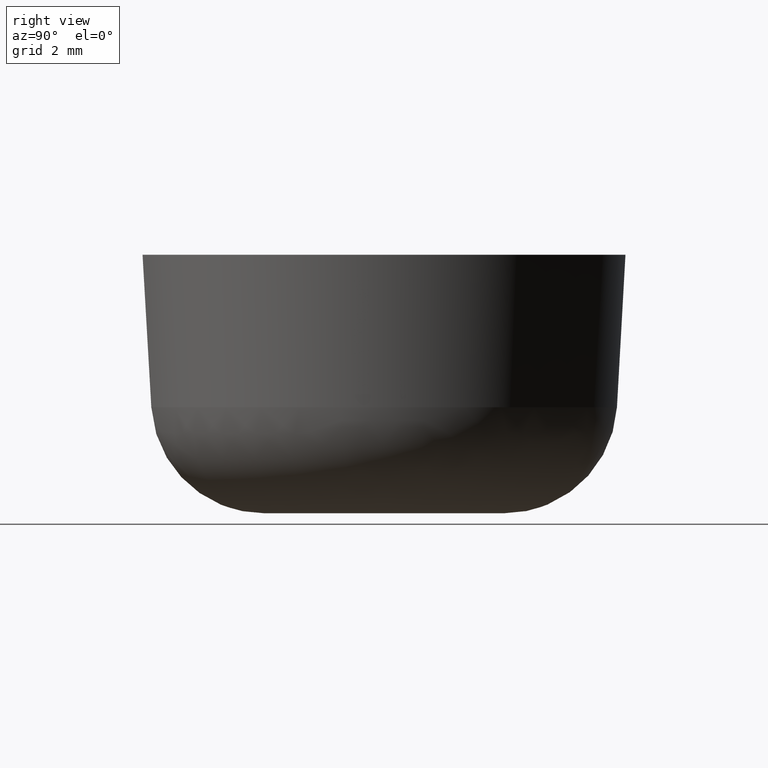
[diagram: clean part render]
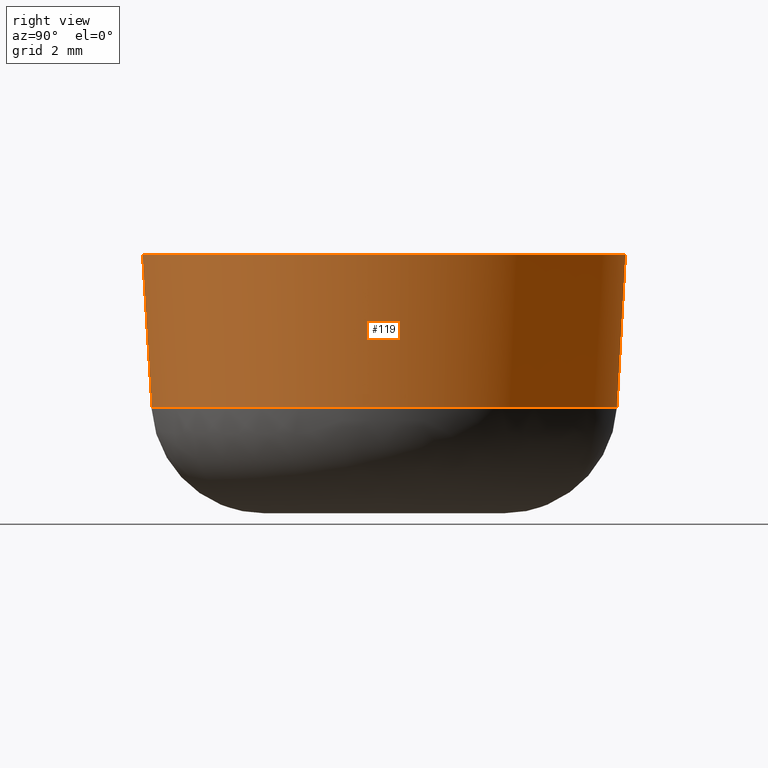
[diagram: same view with one face highlighted and labeled with its STEP entity id]
A machine part, right view. The second image highlights one B-rep face of the part: STEP entity #119.
In plain terms, the highlighted face is a freeform B-spline surface patch.
Its self-contained STEP definition (entity closure, byte-faithful):
#119=ADVANCED_FACE('',(#208),#207,.T.);
#207=( BOUNDED_SURFACE() B_SPLINE_SURFACE( 2,1,((#411,#412),(#413,#414),(#415,#416),(#417,#418),(#419,#420),(#421,#422),(#423,#424)), .UNSPECIFIED.,.T.,.F.,.F.) B_SPLINE_SURFACE_WITH_KNOTS((3,2,2,3),(2,2),(0.00000000000E+000,3.33333333333E-001,6.66666666667E-001,1.00000000000E+000),(0.00000000000E+000,1.00000000000E+000), .UNSPECIFIED. ) GEOMETRIC_REPRESENTATION_ITEM() RATIONAL_B_SPLINE_SURFACE(((1.00000000000E+000,1.00000000000E+000),(5.00000000000E-001,5.00000000000E-001),(1.00000000000E+000,1.00000000000E+000),(5.00000000000E-001,5.00000000000E-001),(1.00000000000E+000,1.00000000000E+000),(5.00000000000E-001,5.00000000000E-001),(1.00000000000E+000,1.00000000000E+000))) REPRESENTATION_ITEM('') SURFACE() );
#208=FACE_OUTER_BOUND('',#425,.T.);
#411=CARTESIAN_POINT('',(-3.76465701838E+000,-6.14336190690E+000,3.28167591578E+000));
#412=CARTESIAN_POINT('',(-3.91873923537E+000,-6.39480123266E+000,8.00000000000E+000));
#413=CARTESIAN_POINT('',(6.87595793366E+000,-1.26639391358E+001,3.28167591578E+000));
#414=CARTESIAN_POINT('',(7.15738140389E+000,-1.31822566899E+001,8.00000000000E+000));
#415=CARTESIAN_POINT('',(7.20263598521E+000,-1.88607661000E-001,3.28167591578E+000));
#416=CARTESIAN_POINT('',(7.49742993732E+000,-1.96327112309E-001,8.00000000000E+000));
#417=CARTESIAN_POINT('',(7.52931403675E+000,1.22867238138E+001,3.28167591578E+000));
#418=CARTESIAN_POINT('',(7.83747847074E+000,1.27896024653E+001,8.00000000000E+000));
#419=CARTESIAN_POINT('',(-3.43797896683E+000,6.33196956790E+000,3.28167591578E+000));
#420=CARTESIAN_POINT('',(-3.57869070195E+000,6.59112834496E+000,8.00000000000E+000));
#421=CARTESIAN_POINT('',(-1.44052719704E+001,3.77215322000E-001,3.28167591578E+000));
#422=CARTESIAN_POINT('',(-1.49948598746E+001,3.92654224618E-001,8.00000000000E+000));
#423=CARTESIAN_POINT('',(-3.76465701838E+000,-6.14336190690E+000,3.28167591578E+000));
#424=CARTESIAN_POINT('',(-3.91873923537E+000,-6.39480123266E+000,8.00000000000E+000));
#425=EDGE_LOOP('',(#585,#586,#587,#588,#589,#590,#591,#592,#593,#594,#595));
#585=ORIENTED_EDGE('',*,*,#703,.F.);
#586=ORIENTED_EDGE('',*,*,#702,.T.);
#587=ORIENTED_EDGE('',*,*,#704,.T.);
#588=ORIENTED_EDGE('',*,*,#705,.T.);
#589=ORIENTED_EDGE('',*,*,#706,.T.);
#590=ORIENTED_EDGE('',*,*,#700,.F.);
#591=ORIENTED_EDGE('',*,*,#707,.F.);
#592=ORIENTED_EDGE('',*,*,#708,.F.);
#593=ORIENTED_EDGE('',*,*,#709,.F.);
#594=ORIENTED_EDGE('',*,*,#710,.F.);
#595=ORIENTED_EDGE('',*,*,#711,.F.);
#700=EDGE_CURVE('',#865,#872,#873,.T.);
#702=EDGE_CURVE('',#858,#879,#886,.T.);
#703=EDGE_CURVE('',#858,#892,#893,.T.);
#704=EDGE_CURVE('',#879,#899,#900,.T.);
#705=EDGE_CURVE('',#899,#906,#907,.T.);
#706=EDGE_CURVE('',#906,#872,#913,.T.);
#707=EDGE_CURVE('',#919,#865,#920,.T.);
#708=EDGE_CURVE('',#926,#919,#927,.T.);
#709=EDGE_CURVE('',#933,#926,#934,.T.);
#710=EDGE_CURVE('',#940,#933,#941,.T.);
#711=EDGE_CURVE('',#892,#940,#947,.T.);
#858=VERTEX_POINT('',#1271);
#865=VERTEX_POINT('',#1276);
#872=VERTEX_POINT('',#1281);
#873=LINE('',#1282,#1283);
#879=VERTEX_POINT('',#1285);
#886=LINE('',#1291,#1292);
#892=VERTEX_POINT('',#1294);
#893=CIRCLE('',#1298,7.20510572004E+000);
#899=VERTEX_POINT('',#1299);
#900=CIRCLE('',#1303,7.49999927790E+000);
#906=VERTEX_POINT('',#1304);
#907=CIRCLE('',#1308,7.50000000000E+000);
#913=CIRCLE('',#1312,7.49999994097E+000);
#919=VERTEX_POINT('',#1313);
#920=CIRCLE('',#1317,7.20510500000E+000);
#926=VERTEX_POINT('',#1318);
#927=CIRCLE('',#1322,7.20510501746E+000);
#933=VERTEX_POINT('',#1323);
#934=CIRCLE('',#1327,7.20510503330E+000);
#940=VERTEX_POINT('',#1328);
#941=CIRCLE('',#1332,7.20510503330E+000);
#947=CIRCLE('',#1336,7.20511477654E+000);
#1271=CARTESIAN_POINT('',(-6.69977089044E+000,-2.65077498117E+000,3.28167591578E+000));
#1276=CARTESIAN_POINT('',(5.65312500498E-001,-7.18289355606E+000,3.28167599999E+000));
#1281=CARTESIAN_POINT('',(5.88438914321E-001,-7.47688029604E+000,7.99999927176E+000));
#1282=CARTESIAN_POINT('',(5.65312500498E-001,-7.18289355606E+000,3.28167599999E+000));
#1283=VECTOR('',#1284,4.72752974937E+000);
#1284=DIRECTION('',(4.89186003024E-003,-6.21861216248E-002,9.98052581772E-001));
#1285=CARTESIAN_POINT('',(-6.97398407699E+000,-2.75926536369E+000,7.99999920353E+000));
#1291=CARTESIAN_POINT('',(-6.69977089044E+000,-2.65077498117E+000,3.28167591578E+000));
#1292=VECTOR('',#1293,4.72752976537E+000);
#1293=DIRECTION('',(-5.80034817669E-002,-2.29486408122E-002,9.98052581775E-001));
#1294=CARTESIAN_POINT('',(-7.20510500000E+000,0.00000000000E+000,3.28167600000E+000));
#1295=CARTESIAN_POINT('',(7.20043191293E-007,1.51573551710E-007,3.28167479922E+000));
#1296=DIRECTION('',(-1.66657472056E-007,-1.09371893837E-015,-1.00000000000E+000));
#1297=DIRECTION('',(9.29864442078E-001,3.67902323122E-001,-1.54968857674E-007));
#1298=AXIS2_PLACEMENT_3D('',#1295,#1296,#1297);
#1299=CARTESIAN_POINT('',(-7.50000000000E+000,0.00000000000E+000,8.00000000000E+000));
#1300=CARTESIAN_POINT('',(-7.22109271045E-007,-2.34921149200E-009,7.99998864378E+000));
#1301=DIRECTION('',(-1.51416237786E-006,-4.94854753115E-016,-9.99999999999E-001));
#1302=DIRECTION('',(9.29864536844E-001,3.67902083600E-001,-1.40796589838E-006));
#1303=AXIS2_PLACEMENT_3D('',#1300,#1301,#1302);
#1304=CARTESIAN_POINT('',(7.50000000000E+000,0.00000000000E+000,8.00000000000E+000));
#1305=CARTESIAN_POINT('',(0.00000000000E+000,0.00000000000E+000,8.00000000000E+000));
#1306=DIRECTION('',(0.00000000000E+000,0.00000000000E+000,-1.00000000000E+000));
#1307=DIRECTION('',(1.00000000000E+000,-0.00000000000E+000,-0.00000000000E+000));
#1308=AXIS2_PLACEMENT_3D('',#1305,#1306,#1307);
#1309=CARTESIAN_POINT('',(5.90268411926E-008,-8.90675488918E-009,7.99999920976E+000));
#1310=DIRECTION('',(1.05365811365E-007,8.82315015805E-024,-1.00000000000E+000));
#1311=DIRECTION('',(-1.00000000000E+000,-1.18756732790E-009,-1.05365811365E-007));
#1312=AXIS2_PLACEMENT_3D('',#1309,#1310,#1311);
#1313=CARTESIAN_POINT('',(7.20510500000E+000,0.00000000000E+000,3.28167600000E+000));
#1314=CARTESIAN_POINT('',(4.31521485211E-012,-6.56807941368E-013,3.28167599999E+000));
#1315=DIRECTION('',(9.31310225297E-013,2.43534520832E-028,-1.00000000000E+000));
#1316=DIRECTION('',(-1.00000000000E+000,-9.11586911459E-014,-9.31310225297E-013));
#1317=AXIS2_PLACEMENT_3D('',#1314,#1315,#1316);
#1318=CARTESIAN_POINT('',(1.19047542912E+000,7.10607532268E+000,3.28167599922E+000));
#1319=CARTESIAN_POINT('',(-1.74594365632E-008,-2.26142216064E-009,3.28167599906E+000));
#1320=DIRECTION('',(1.30200695588E-010,2.38919400887E-017,-1.00000000000E+000));
#1321=DIRECTION('',(-1.65226661332E-001,-9.86255621219E-001,-2.15126497987E-011));
#1322=AXIS2_PLACEMENT_3D('',#1319,#1320,#1321);
#1323=CARTESIAN_POINT('',(-1.18533839415E-003,7.20510491124E+000,3.28167599889E+000));
#1324=CARTESIAN_POINT('',(1.97422536097E-008,-2.45502262963E-008,3.28167599801E+000));
#1325=DIRECTION('',(-1.61868177277E-010,1.22524338182E-010,-1.00000000000E+000));
#1326=DIRECTION('',(9.98736956442E-001,-5.02443214414E-002,-1.67819882950E-010));
#1327=AXIS2_PLACEMENT_3D('',#1324,#1325,#1326);
#1328=CARTESIAN_POINT('',(-7.19600465206E+000,3.62015588762E-001,3.28167599922E+000));
#1329=CARTESIAN_POINT('',(1.97422536097E-008,-2.45502262963E-008,3.28167599801E+000));
#1330=DIRECTION('',(-1.61868177277E-010,1.22524338182E-010,-1.00000000000E+000));
#1331=DIRECTION('',(9.98736956442E-001,-5.02443214414E-002,-1.67819882950E-010));
#1332=AXIS2_PLACEMENT_3D('',#1329,#1330,#1331);
#1333=CARTESIAN_POINT('',(9.77654487766E-006,-7.61800900140E-011,3.28167538029E+000));
#1334=DIRECTION('',(-8.60101246671E-008,4.79410577577E-015,-1.00000000000E+000));
#1335=DIRECTION('',(1.00000000000E+000,-1.05730571096E-011,-8.60101246671E-008));
#1336=AXIS2_PLACEMENT_3D('',#1333,#1334,#1335);